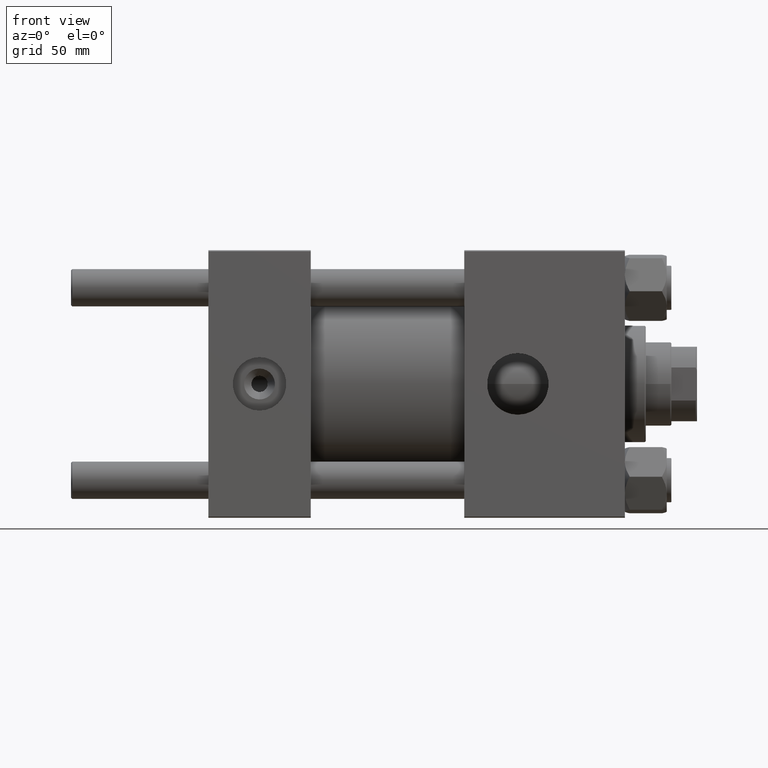
[diagram: clean part render]
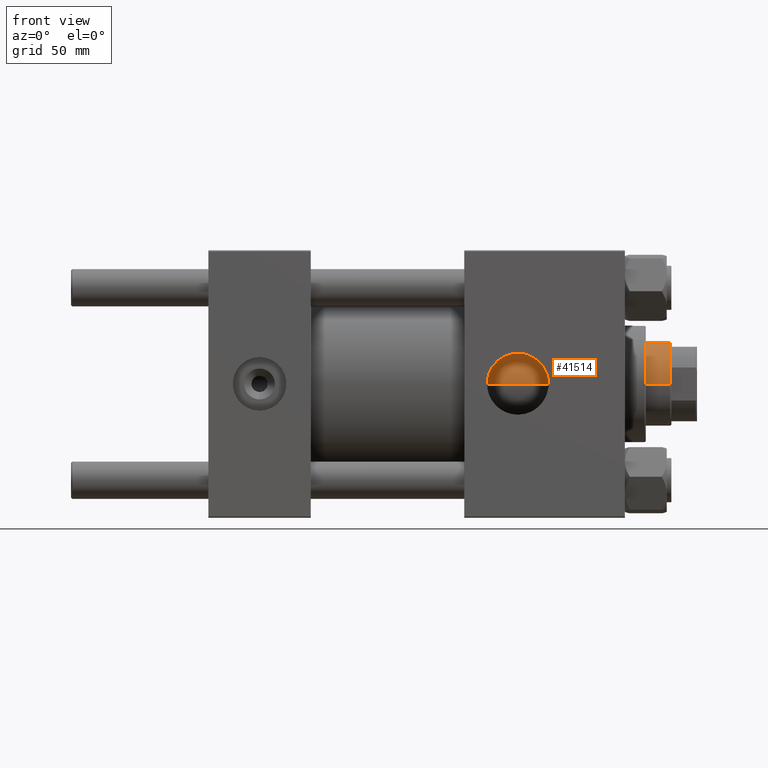
[diagram: same view with one face highlighted and labeled with its STEP entity id]
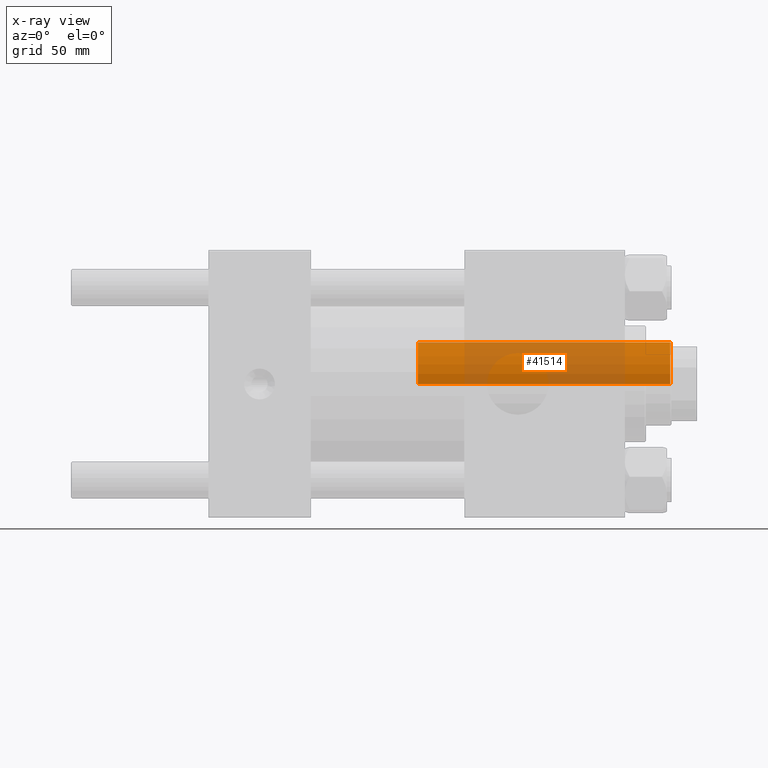
[diagram: x-ray of the same camera — body ghosted, the highlighted face saturated]
A machine part, front view. The second image highlights one B-rep face of the part: STEP entity #41514.
The next image is the same camera in x-ray: the body ghosted, the highlighted face saturated — about 50% of this face is hidden behind the body in this view.
In plain terms, the highlighted cylindrical surface (partial cylindrical patch) has radius 18 mm, axis along (-1, 0, 0).
Its self-contained STEP definition (entity closure, byte-faithful):
#109 = DIRECTION ( 'NONE',  ( -1.000000000000000000, 0.000000000000000000, 0.000000000000000000 ) ) ;
#4886 = CARTESIAN_POINT ( 'NONE',  ( 18.00000000000000000, 2.204364238465235428E-15, 46.00000000000000000 ) ) ;
#4895 = DIRECTION ( 'NONE',  ( -0.000000000000000000, -0.000000000000000000, -1.000000000000000000 ) ) ;
#5231 = DIRECTION ( 'NONE',  ( 0.000000000000000000, 0.000000000000000000, 1.000000000000000000 ) ) ;
#7270 = CYLINDRICAL_SURFACE ( 'NONE', #33284, 18.00000000000000000 ) ;
#8559 = VECTOR ( 'NONE', #4895, 1000.000000000000000 ) ;
#8617 = EDGE_LOOP ( 'NONE', ( #43361, #18191, #12630, #39506 ) ) ;
#10452 = EDGE_CURVE ( 'NONE', #17578, #44087, #36526, .T. ) ;
#11510 = DIRECTION ( 'NONE',  ( 1.000000000000000000, 0.000000000000000000, 0.000000000000000000 ) ) ;
#12630 = ORIENTED_EDGE ( 'NONE', *, *, #39160, .T. ) ;
#15717 = CARTESIAN_POINT ( 'NONE',  ( -18.00000000000000000, 0.000000000000000000, 154.4999999999999716 ) ) ;
#16720 = DIRECTION ( 'NONE',  ( 1.000000000000000000, 0.000000000000000000, 0.000000000000000000 ) ) ;
#17578 = VERTEX_POINT ( 'NONE', #28134 ) ;
#18191 = ORIENTED_EDGE ( 'NONE', *, *, #26913, .T. ) ;
#20831 = VERTEX_POINT ( 'NONE', #21429 ) ;
#21429 = CARTESIAN_POINT ( 'NONE',  ( -18.00000000000000000, 0.000000000000000000, 46.00000000000000000 ) ) ;
#22393 = DIRECTION ( 'NONE',  ( -0.000000000000000000, -0.000000000000000000, -1.000000000000000000 ) ) ;
#22617 = AXIS2_PLACEMENT_3D ( 'NONE', #24890, #5231, #16720 ) ;
#22889 = CARTESIAN_POINT ( 'NONE',  ( -18.00000000000000000, 0.000000000000000000, 155.0000000000000000 ) ) ;
#23598 = DIRECTION ( 'NONE',  ( -0.000000000000000000, -0.000000000000000000, -1.000000000000000000 ) ) ;
#24890 = CARTESIAN_POINT ( 'NONE',  ( 0.000000000000000000, 0.000000000000000000, 46.00000000000000000 ) ) ;
#26661 = FACE_OUTER_BOUND ( 'NONE', #8617, .T. ) ;
#26913 = EDGE_CURVE ( 'NONE', #17578, #38297, #30477, .T. ) ;
#28134 = CARTESIAN_POINT ( 'NONE',  ( 18.00000000000000000, 2.204364238465235428E-15, 154.4999999999999716 ) ) ;
#30477 = CIRCLE ( 'NONE', #38639, 18.00000000000000000 ) ;
#30727 = CIRCLE ( 'NONE', #22617, 18.00000000000000000 ) ;
#30902 = CARTESIAN_POINT ( 'NONE',  ( 0.000000000000000000, 0.000000000000000000, 154.4999999999999716 ) ) ;
#33284 = AXIS2_PLACEMENT_3D ( 'NONE', #46308, #23598, #109 ) ;
#34827 = EDGE_CURVE ( 'NONE', #20831, #44087, #30727, .T. ) ;
#36526 = LINE ( 'NONE', #47765, #8559 ) ;
#38297 = VERTEX_POINT ( 'NONE', #15717 ) ;
#38639 = AXIS2_PLACEMENT_3D ( 'NONE', #30902, #46475, #11510 ) ;
#39160 = EDGE_CURVE ( 'NONE', #38297, #20831, #41788, .T. ) ;
#39506 = ORIENTED_EDGE ( 'NONE', *, *, #34827, .T. ) ;
#41514 = ADVANCED_FACE ( 'NONE', ( #26661 ), #7270, .T. ) ;
#41788 = LINE ( 'NONE', #22889, #50325 ) ;
#43361 = ORIENTED_EDGE ( 'NONE', *, *, #10452, .F. ) ;
#44087 = VERTEX_POINT ( 'NONE', #4886 ) ;
#46308 = CARTESIAN_POINT ( 'NONE',  ( 0.000000000000000000, 0.000000000000000000, 155.0000000000000000 ) ) ;
#46475 = DIRECTION ( 'NONE',  ( 0.000000000000000000, 0.000000000000000000, -1.000000000000000000 ) ) ;
#47765 = CARTESIAN_POINT ( 'NONE',  ( 18.00000000000000000, 2.204364238465235428E-15, 155.0000000000000000 ) ) ;
#50325 = VECTOR ( 'NONE', #22393, 1000.000000000000000 ) ;